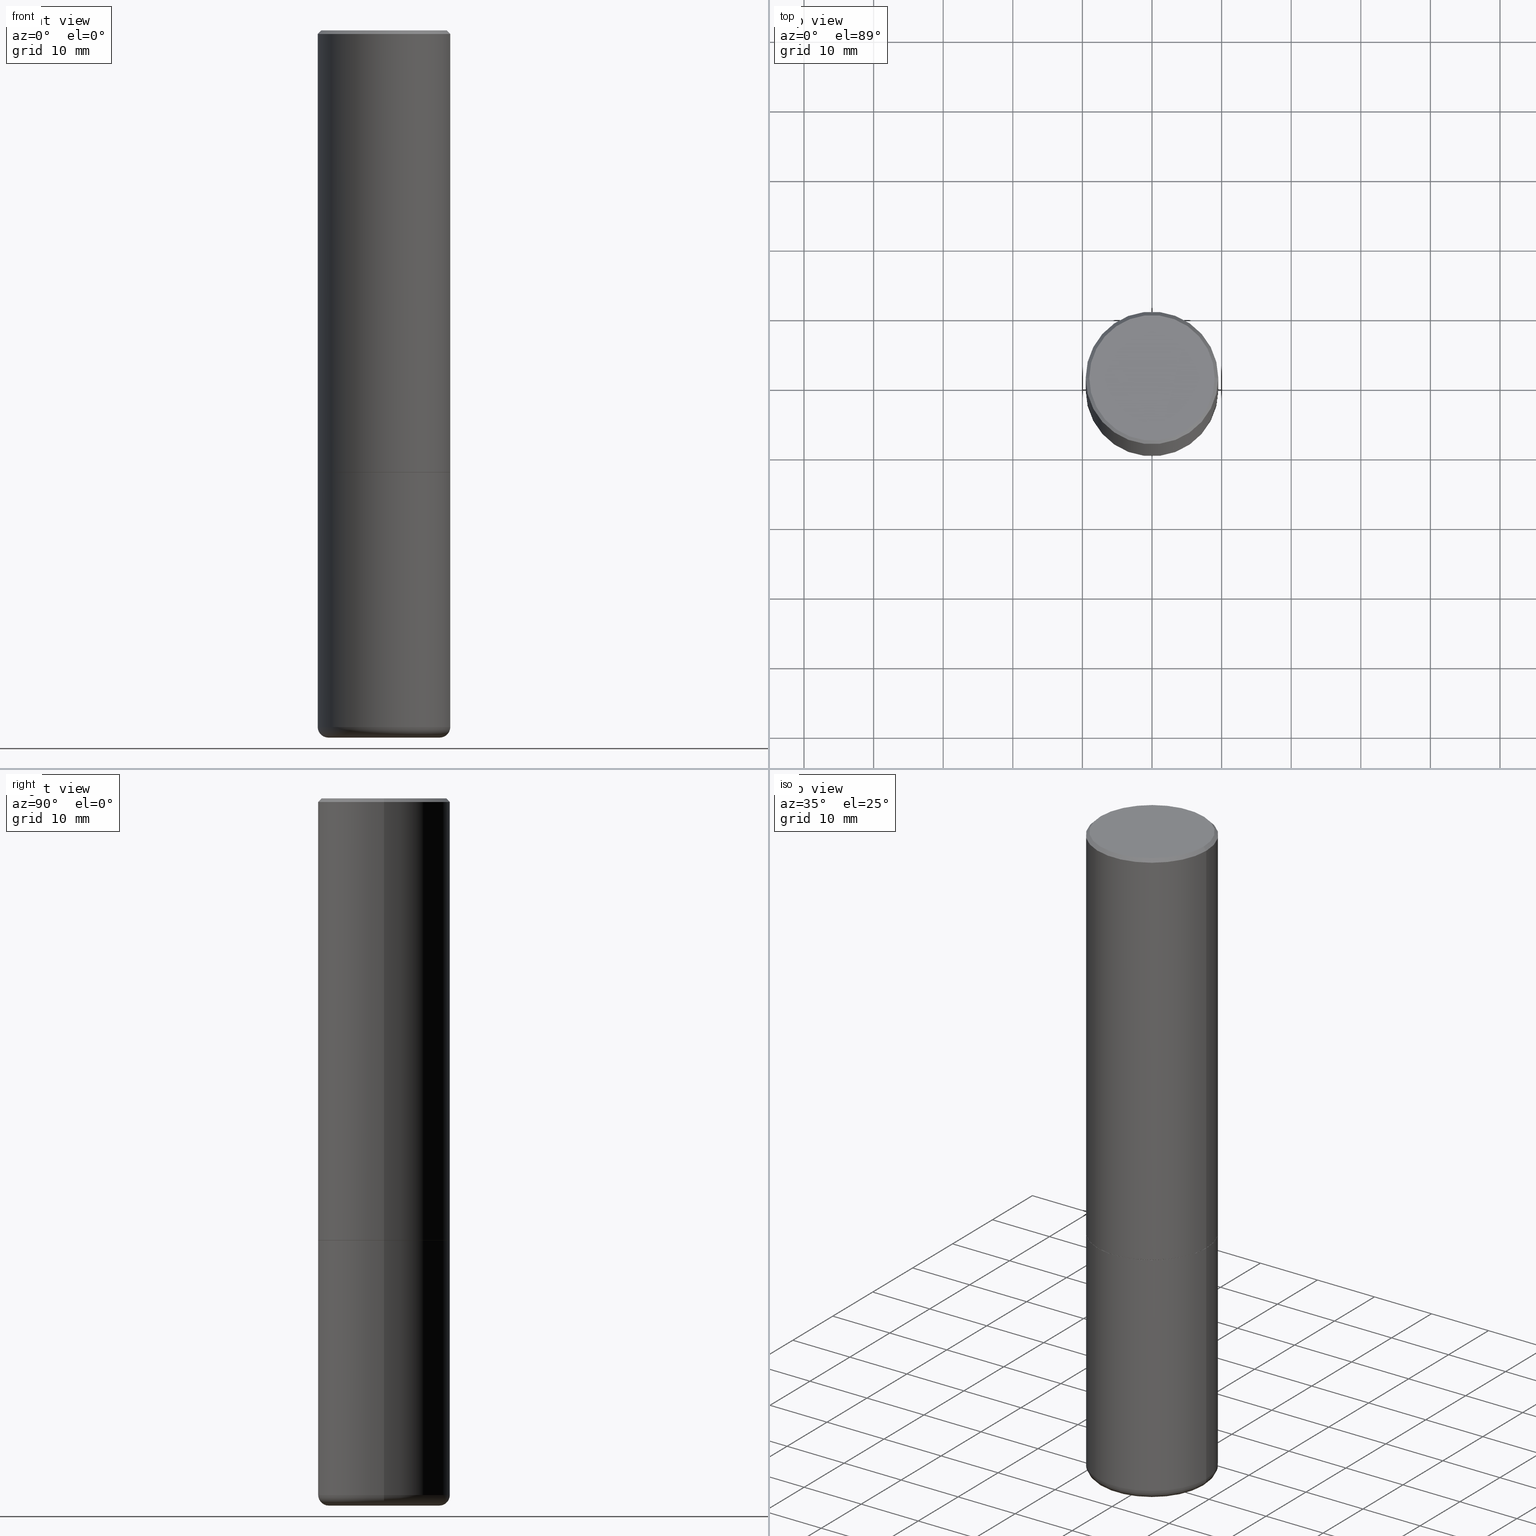
[diagram: canonical four-view strip — front | top / right | iso, engineering-drawing reading convention]
A machine part, canonical four-view strip (front | top / right | iso — engineering-drawing reading convention). The complete STEP part file that produces these views, byte-faithful:
ISO-10303-21;
HEADER;
FILE_DESCRIPTION (( 'STEP AP203' ),
    '1' );
FILE_NAME ('37104.STEP',
    '2024-03-01T20:12:25',
    ( '' ),
    ( '' ),
    'SwSTEP 2.0',
    'SolidWorks 2023',
    '' );
FILE_SCHEMA (( 'CONFIG_CONTROL_DESIGN' ));
ENDSEC;

DATA;
#1 = ORIENTED_EDGE ( 'NONE', *, *, #37, .T. ) ;
#2 = VERTEX_POINT ( 'NONE', #227 ) ;
#3 = CARTESIAN_POINT ( 'NONE',  ( 0.3749999999999999445, -2.618611004132349622E-15, 1.828566290923475642E-29 ) ) ;
#4 = ORIENTED_EDGE ( 'NONE', *, *, #258, .T. ) ;
#5 = EDGE_CURVE ( 'NONE', #339, #290, #391, .T. ) ;
#6 = EDGE_LOOP ( 'NONE', ( #402, #276, #304, #165 ) ) ;
#7 = CARTESIAN_POINT ( 'NONE',  ( 6.113672015462842613E-29, -8.728703347107864943E-15, -2.500000000000000000 ) ) ;
#8 = AXIS2_PLACEMENT_3D ( 'NONE', #158, #325, #77 ) ;
#9 = DIRECTION ( 'NONE',  ( -2.445468806185136597E-29, 3.491481338843145583E-15, 1.000000000000000000 ) ) ;
#10 = LINE ( 'NONE', #265, #232 ) ;
#11 = FACE_OUTER_BOUND ( 'NONE', #81, .T. ) ;
#12 = APPLICATION_PROTOCOL_DEFINITION ( 'international standard', 'config_control_design', 1994, #107 ) ;
#13 = DIRECTION ( 'NONE',  ( 2.438088387897960049E-29, -3.491481338843145188E-15, -1.000000000000000000 ) ) ;
#14 = APPROVAL_DATE_TIME ( #170, #373 ) ;
#15 = DIRECTION ( 'NONE',  ( 0.7071067811865460184, -7.319954787623251312E-15, -0.7071067811865490160 ) ) ;
#16 = ORIENTED_EDGE ( 'NONE', *, *, #264, .T. ) ;
#17 = ORIENTED_EDGE ( 'NONE', *, *, #242, .T. ) ;
#18 = DIRECTION ( 'NONE',  ( 1.000000000000000000, 0.000000000000000000, 0.000000000000000000 ) ) ;
#19 = EDGE_CURVE ( 'NONE', #316, #48, #30, .T. ) ;
#20 = ORIENTED_EDGE ( 'NONE', *, *, #311, .F. ) ;
#21 = DIRECTION ( 'NONE',  ( -2.445468806185136597E-29, 3.491481338843145583E-15, 1.000000000000000000 ) ) ;
#22 = LOCAL_TIME ( 15, 12, 25.00000000000000000, #385 ) ;
#23 = LINE ( 'NONE', #94, #377 ) ;
#24 = ORIENTED_EDGE ( 'NONE', *, *, #43, .F. ) ;
#25 = ADVANCED_FACE ( 'NONE', ( #286 ), #326, .F. ) ;
#26 = DIRECTION ( 'NONE',  ( 1.000000000000000000, -6.982962677686263555E-15, 4.883557194083111219E-29 ) ) ;
#27 = DIRECTION ( 'NONE',  ( 1.000000000000000000, -6.982962677686266711E-15, 4.876176775795935793E-29 ) ) ;
#28 = ORIENTED_EDGE ( 'NONE', *, *, #114, .T. ) ;
#29 = EDGE_CURVE ( 'NONE', #92, #67, #360, .T. ) ;
#30 = CIRCLE ( 'NONE', #259, 0.3739999999999999991 ) ;
#31 = AXIS2_PLACEMENT_3D ( 'NONE', #125, #250, #407 ) ;
#32 = DIRECTION ( 'NONE',  ( -2.445468806185136877E-29, 3.491481338843145188E-15, 1.000000000000000000 ) ) ;
#33 = CARTESIAN_POINT ( 'NONE',  ( -0.3749999999999999445, 2.664535259100375303E-15, -1.844600658845589318E-29 ) ) ;
#34 = CARTESIAN_POINT ( 'NONE',  ( -0.3750000000000001110, 2.548781377355487113E-15, -0.02000000000000008715 ) ) ;
#35 = CIRCLE ( 'NONE', #245, 0.3750000000000002776 ) ;
#36 = LINE ( 'NONE', #33, #210 ) ;
#37 = EDGE_CURVE ( 'NONE', #319, #355, #297, .T. ) ;
#38 = CARTESIAN_POINT ( 'NONE',  ( 0.3750000000000001110, -1.637504747917434403E-14, -3.939999999999999947 ) ) ;
#39 = APPROVAL ( #56, 'UNSPECIFIED' ) ;
#40 = DIRECTION ( 'NONE',  ( -2.445468806185136597E-29, 3.491481338843145583E-15, 1.000000000000000000 ) ) ;
#41 = DIRECTION ( 'NONE',  ( 1.000000000000000000, -6.982962677686267499E-15, 0.000000000000000000 ) ) ;
#42 = PRODUCT_DEFINITION_FORMATION_WITH_SPECIFIED_SOURCE ( 'ANY', '', #104, .NOT_KNOWN. ) ;
#43 = EDGE_CURVE ( 'NONE', #290, #355, #307, .T. ) ;
#44 = DIRECTION ( 'NONE',  ( 1.000000000000000000, -6.982962677686268288E-15, 0.000000000000000000 ) ) ;
#45 = DATE_AND_TIME ( #177, #334 ) ;
#46 = ORIENTED_EDGE ( 'NONE', *, *, #59, .T. ) ;
#47 = PERSON_AND_ORGANIZATION_ROLE ( 'design_owner' ) ;
#48 = VERTEX_POINT ( 'NONE', #331 ) ;
#49 = AXIS2_PLACEMENT_3D ( 'NONE', #228, #50, #376 ) ;
#50 = DIRECTION ( 'NONE',  ( -2.445468806185136597E-29, 3.491481338843145583E-15, 1.000000000000000000 ) ) ;
#51 = ORIENTED_EDGE ( 'NONE', *, *, #218, .F. ) ;
#52 = DIRECTION ( 'NONE',  ( 1.000000000000000000, -6.982962677686279332E-15, 0.000000000000000000 ) ) ;
#53 = CC_DESIGN_PERSON_AND_ORGANIZATION_ASSIGNMENT ( #401, #110, ( #328 ) ) ;
#54 = VERTEX_POINT ( 'NONE', #270 ) ;
#55 = EDGE_LOOP ( 'NONE', ( #207, #1, #405, #215 ) ) ;
#56 = APPROVAL_STATUS ( 'not_yet_approved' ) ;
#57 = CARTESIAN_POINT ( 'NONE',  ( 0.000000000000000000, 0.000000000000000000, 0.000000000000000000 ) ) ;
#58 = VECTOR ( 'NONE', #238, 39.37007874015748143 ) ;
#59 = EDGE_CURVE ( 'NONE', #67, #374, #178, .T. ) ;
#60 = AXIS2_PLACEMENT_3D ( 'NONE', #127, #40, #226 ) ;
#61 = ORIENTED_EDGE ( 'NONE', *, *, #63, .F. ) ;
#62 = VERTEX_POINT ( 'NONE', #303 ) ;
#63 = EDGE_CURVE ( 'NONE', #92, #366, #10, .T. ) ;
#64 = DIRECTION ( 'NONE',  ( -2.445468806185136597E-29, 3.491481338843145583E-15, 1.000000000000000000 ) ) ;
#65 = DIRECTION ( 'NONE',  ( -2.445468806185136597E-29, 3.491481338843145583E-15, 1.000000000000000000 ) ) ;
#66 = EDGE_CURVE ( 'NONE', #48, #181, #397, .T. ) ;
#67 = VERTEX_POINT ( 'NONE', #314 ) ;
#68 =( LENGTH_UNIT ( ) NAMED_UNIT ( * ) SI_UNIT ( $, .METRE. ) );
#69 = LINE ( 'NONE', #3, #143 ) ;
#70 = CONICAL_SURFACE ( 'NONE', #268, 0.3739999999999999991, 0.7853981633976873100 ) ;
#71 = ADVANCED_BREP_SHAPE_REPRESENTATION ( '37104', ( #408, #126, #260 ), #220 ) ;
#72 = ORGANIZATION ( 'UNSPECIFIED', 'UNSPECIFIED', '' ) ;
#73 = ORIENTED_EDGE ( 'NONE', *, *, #169, .T. ) ;
#74 = FACE_OUTER_BOUND ( 'NONE', #113, .T. ) ;
#75 = CYLINDRICAL_SURFACE ( 'NONE', #317, 0.3750000000000002220 ) ;
#76 = FACE_OUTER_BOUND ( 'NONE', #6, .T. ) ;
#77 = DIRECTION ( 'NONE',  ( 1.000000000000000000, -6.982962677686267499E-15, 0.000000000000000000 ) ) ;
#78 = AXIS2_PLACEMENT_3D ( 'NONE', #274, #272, #293 ) ;
#79 = APPROVAL_ROLE ( '' ) ;
#80 = CIRCLE ( 'NONE', #31, 0.06000000000000017819 ) ;
#81 = EDGE_LOOP ( 'NONE', ( #236, #263 ) ) ;
#82 = CARTESIAN_POINT ( 'NONE',  ( 0.000000000000000000, 0.000000000000000000, 0.000000000000000000 ) ) ;
#83 = ORIENTED_EDGE ( 'NONE', *, *, #305, .T. ) ;
#84 = CC_DESIGN_PERSON_AND_ORGANIZATION_ASSIGNMENT ( #295, #179, ( #42 ) ) ;
#85 = PERSON_AND_ORGANIZATION ( #267, #72 ) ;
#86 = AXIS2_PLACEMENT_3D ( 'NONE', #57, #65, #120 ) ;
#87 = CARTESIAN_POINT ( 'NONE',  ( 4.937077108964125641E-29, -2.090395200594849049E-14, -4.000000000000000000 ) ) ;
#88 = CIRCLE ( 'NONE', #8, 0.3150000000000000577 ) ;
#89 = DIRECTION ( 'NONE',  ( -2.445468806185136877E-29, 3.491481338843145188E-15, 1.000000000000000000 ) ) ;
#90 = CC_DESIGN_APPROVAL ( #373, ( #328 ) ) ;
#91 = CC_DESIGN_PERSON_AND_ORGANIZATION_ASSIGNMENT ( #209, #278, ( #42 ) ) ;
#92 = VERTEX_POINT ( 'NONE', #415 ) ;
#93 = FACE_OUTER_BOUND ( 'NONE', #200, .T. ) ;
#94 = CARTESIAN_POINT ( 'NONE',  ( 0.3750000000000002220, -2.618611004132351594E-15, 1.828566290923477043E-29 ) ) ;
#95 = EDGE_LOOP ( 'NONE', ( #20, #148, #229, #269 ) ) ;
#96 = EDGE_CURVE ( 'NONE', #67, #92, #399, .T. ) ;
#97 = AXIS2_PLACEMENT_3D ( 'NONE', #216, #152, #349 ) ;
#98 = APPROVAL_PERSON_ORGANIZATION ( #85, #283, #79 ) ;
#99 = CARTESIAN_POINT ( 'NONE',  ( 6.111226546656657010E-29, -8.725211865769021935E-15, -2.499000000000000110 ) ) ;
#100 =( CONVERSION_BASED_UNIT ( 'INCH', #132 ) LENGTH_UNIT ( ) NAMED_UNIT ( #284 ) );
#101 = ADVANCED_FACE ( 'NONE', ( #93 ), #381, .T. ) ;
#102 = LOCAL_TIME ( 15, 12, 25.00000000000000000, #398 ) ;
#103 = CARTESIAN_POINT ( 'NONE',  ( 0.000000000000000000, 0.000000000000000000, 0.000000000000000000 ) ) ;
#104 = PRODUCT ( '37104', '37104', '', ( #139 ) ) ;
#105 = CONICAL_SURFACE ( 'NONE', #244, 0.3739999999999999991, 0.7853981633976873100 ) ;
#106 = VECTOR ( 'NONE', #32, 39.37007874015748143 ) ;
#107 = APPLICATION_CONTEXT ( 'configuration controlled 3d designs of mechanical parts and assemblies' ) ;
#108 = COORDINATED_UNIVERSAL_TIME_OFFSET ( 5, 0, .BEHIND. ) ;
#109 = CC_DESIGN_DATE_AND_TIME_ASSIGNMENT ( #140, #146, ( #328 ) ) ;
#110 = PERSON_AND_ORGANIZATION_ROLE ( 'creator' ) ;
#111 = CIRCLE ( 'NONE', #298, 0.3750000000000001110 ) ;
#112 = SHAPE_DEFINITION_REPRESENTATION ( #118, #71 ) ;
#113 = EDGE_LOOP ( 'NONE', ( #214, #410 ) ) ;
#114 = EDGE_CURVE ( 'NONE', #316, #2, #180, .T. ) ;
#115 = CARTESIAN_POINT ( 'NONE',  ( 0.3739999999999999991, -1.134033138856252894E-14, -2.500000000000000000 ) ) ;
#116 = APPLICATION_CONTEXT ( 'configuration controlled 3d designs of mechanical parts and assemblies' ) ;
#117 = ADVANCED_FACE ( 'NONE', ( #76 ), #105, .T. ) ;
#118 = PRODUCT_DEFINITION_SHAPE ( 'NONE', 'NONE',  #328 ) ;
#119 = APPROVAL_ROLE ( '' ) ;
#120 = DIRECTION ( 'NONE',  ( 1.000000000000000000, -6.982962677686266711E-15, 4.876176775795935793E-29 ) ) ;
#121 = AXIS2_PLACEMENT_3D ( 'NONE', #416, #412, #352 ) ;
#122 = DIRECTION ( 'NONE',  ( 1.000000000000000000, -6.982962677686265922E-15, 4.878367520217864080E-29 ) ) ;
#123 = EDGE_CURVE ( 'NONE', #48, #316, #343, .T. ) ;
#124 = ORIENTED_EDGE ( 'NONE', *, *, #388, .T. ) ;
#125 = CARTESIAN_POINT ( 'NONE',  ( -0.3150000000000000577, -1.151822685739767881E-14, -3.939999999999999947 ) ) ;
#126 = MANIFOLD_SOLID_BREP ( 'Body-Move/Copy2[2]', #322 ) ;
#127 = CARTESIAN_POINT ( 'NONE',  ( 6.113672015462842613E-29, -8.728703347107864943E-15, -2.500000000000000000 ) ) ;
#128 = AXIS2_PLACEMENT_3D ( 'NONE', #144, #369, #333 ) ;
#129 = ORIENTED_EDGE ( 'NONE', *, *, #258, .F. ) ;
#130 = CC_DESIGN_SECURITY_CLASSIFICATION ( #386, ( #42 ) ) ;
#131 = ORIENTED_EDGE ( 'NONE', *, *, #96, .F. ) ;
#132 = LENGTH_MEASURE_WITH_UNIT ( LENGTH_MEASURE( 0.02539999999999999897 ), #68 );
#133 = DIRECTION ( 'NONE',  ( -2.445468806185136597E-29, 3.491481338843145583E-15, 1.000000000000000000 ) ) ;
#134 = DIRECTION ( 'NONE',  ( 1.000000000000000000, -6.982962677686265922E-15, 0.000000000000000000 ) ) ;
#135 = ORIENTED_EDGE ( 'NONE', *, *, #123, .F. ) ;
#136 = TOROIDAL_SURFACE ( 'NONE', #192, 0.3150000000000000577, 0.06000000000000017819 ) ;
#137 = DESIGN_CONTEXT ( 'detailed design', #116, 'design' ) ;
#138 = PRODUCT_RELATED_PRODUCT_CATEGORY ( 'detail', '', ( #104 ) ) ;
#139 = MECHANICAL_CONTEXT ( 'NONE', #107, 'mechanical' ) ;
#140 = DATE_AND_TIME ( #173, #280 ) ;
#141 = CARTESIAN_POINT ( 'NONE',  ( -0.3739999999999999991, -6.071273515365089465E-15, -2.500000000000000000 ) ) ;
#142 = AXIS2_PLACEMENT_3D ( 'NONE', #378, #212, #122 ) ;
#143 = VECTOR ( 'NONE', #389, 39.37007874015748143 ) ;
#144 = CARTESIAN_POINT ( 'NONE',  ( 6.113672015462842613E-29, -8.728703347107864943E-15, -2.500000000000000000 ) ) ;
#145 = ORIENTED_EDGE ( 'NONE', *, *, #384, .F. ) ;
#146 = DATE_TIME_ROLE ( 'creation_date' ) ;
#147 = ADVANCED_FACE ( 'NONE', ( #417 ), #70, .T. ) ;
#148 = ORIENTED_EDGE ( 'NONE', *, *, #5, .T. ) ;
#149 = CC_DESIGN_PERSON_AND_ORGANIZATION_ASSIGNMENT ( #247, #380, ( #386 ) ) ;
#150 = CARTESIAN_POINT ( 'NONE',  ( -0.3750000000000001110, -1.109190121594161832E-14, -3.939999999999999947 ) ) ;
#151 = ORIENTED_EDGE ( 'NONE', *, *, #221, .F. ) ;
#152 = DIRECTION ( 'NONE',  ( 2.445468806185136597E-29, -3.491481338843145583E-15, -1.000000000000000000 ) ) ;
#153 = DIRECTION ( 'NONE',  ( 1.000000000000000000, -6.982962677686269077E-15, 0.000000000000000000 ) ) ;
#154 = UNCERTAINTY_MEASURE_WITH_UNIT (LENGTH_MEASURE( 1.000000000000000082E-05 ), #100, 'distance_accuracy_value', 'NONE');
#155 = LINE ( 'NONE', #184, #106 ) ;
#156 = APPROVAL_PERSON_ORGANIZATION ( #340, #39, #119 ) ;
#157 = CARTESIAN_POINT ( 'NONE',  ( 0.3739999999999999991, -1.134033138856252894E-14, -2.500000000000000000 ) ) ;
#158 = CARTESIAN_POINT ( 'NONE',  ( 9.781875224740547508E-29, -1.396592535537258391E-14, -4.000000000000000888 ) ) ;
#159 = DIRECTION ( 'NONE',  ( 1.000000000000000000, -6.982962677686268288E-15, 0.000000000000000000 ) ) ;
#160 = ORIENTED_EDGE ( 'NONE', *, *, #311, .T. ) ;
#161 = AXIS2_PLACEMENT_3D ( 'NONE', #7, #266, #252 ) ;
#162 = AXIS2_PLACEMENT_3D ( 'NONE', #409, #345, #153 ) ;
#163 = DIRECTION ( 'NONE',  ( -2.445468806185136597E-29, 3.491481338843145583E-15, 1.000000000000000000 ) ) ;
#164 = ORIENTED_EDGE ( 'NONE', *, *, #63, .T. ) ;
#165 = ORIENTED_EDGE ( 'NONE', *, *, #114, .F. ) ;
#166 = AXIS2_PLACEMENT_3D ( 'NONE', #103, #356, #321 ) ;
#167 = DIRECTION ( 'NONE',  ( 2.438088387897960049E-29, -3.491481338843145188E-15, -1.000000000000000000 ) ) ;
#168 = APPROVAL_DATE_TIME ( #45, #283 ) ;
#169 = EDGE_CURVE ( 'NONE', #319, #62, #36, .T. ) ;
#170 = DATE_AND_TIME ( #375, #102 ) ;
#171 = ORIENTED_EDGE ( 'NONE', *, *, #264, .F. ) ;
#172 = VECTOR ( 'NONE', #400, 39.37007874015748143 ) ;
#173 = CALENDAR_DATE ( 2024, 1, 3 ) ;
#174 = AXIS2_PLACEMENT_3D ( 'NONE', #183, #21, #282 ) ;
#175 = DIRECTION ( 'NONE',  ( -6.982962677686266711E-15, -1.000000000000000000, 3.491481338843145583E-15 ) ) ;
#176 = ORIENTED_EDGE ( 'NONE', *, *, #29, .F. ) ;
#177 = CALENDAR_DATE ( 2024, 1, 3 ) ;
#178 = LINE ( 'NONE', #365, #182 ) ;
#179 = PERSON_AND_ORGANIZATION_ROLE ( 'creator' ) ;
#180 = LINE ( 'NONE', #157, #58 ) ;
#181 = VERTEX_POINT ( 'NONE', #393 ) ;
#182 = VECTOR ( 'NONE', #15, 39.37007874015748143 ) ;
#183 = CARTESIAN_POINT ( 'NONE',  ( 6.113672015462842613E-29, -8.728703347107864943E-15, -2.500000000000000000 ) ) ;
#184 = CARTESIAN_POINT ( 'NONE',  ( -0.3750000000000002220, 2.664535259100377275E-15, -1.844600658845590719E-29 ) ) ;
#185 = ADVANCED_FACE ( 'NONE', ( #11 ), #275, .F. ) ;
#186 = FACE_OUTER_BOUND ( 'NONE', #395, .T. ) ;
#187 = AXIS2_PLACEMENT_3D ( 'NONE', #251, #357, #134 ) ;
#188 = FACE_OUTER_BOUND ( 'NONE', #256, .T. ) ;
#189 = CARTESIAN_POINT ( 'NONE',  ( 6.113672015462842613E-29, -8.728703347107864943E-15, -2.500000000000000000 ) ) ;
#190 = FACE_OUTER_BOUND ( 'NONE', #55, .T. ) ;
#191 = AXIS2_PLACEMENT_3D ( 'NONE', #337, #167, #362 ) ;
#192 = AXIS2_PLACEMENT_3D ( 'NONE', #315, #64, #312 ) ;
#193 = CYLINDRICAL_SURFACE ( 'NONE', #166, 0.3749999999999999445 ) ;
#194 = ORIENTED_EDGE ( 'NONE', *, *, #384, .T. ) ;
#195 = FACE_OUTER_BOUND ( 'NONE', #347, .T. ) ;
#196 = DIRECTION ( 'NONE',  ( -1.000000000000000000, 6.982962677686265922E-15, 0.000000000000000000 ) ) ;
#197 = CIRCLE ( 'NONE', #205, 0.3750000000000002776 ) ;
#198 = EDGE_LOOP ( 'NONE', ( #413, #160, #202, #24 ) ) ;
#200 = EDGE_LOOP ( 'NONE', ( #131, #46, #330, #61 ) ) ;
#199 = ADVANCED_FACE ( 'NONE', ( #195 ), #75, .T. ) ;
#201 = APPROVAL_STATUS ( 'not_yet_approved' ) ;
#202 = ORIENTED_EDGE ( 'NONE', *, *, #332, .F. ) ;
#203 = AXIS2_PLACEMENT_3D ( 'NONE', #394, #363, #41 ) ;
#204 = APPROVAL_STATUS ( 'not_yet_approved' ) ;
#205 = AXIS2_PLACEMENT_3D ( 'NONE', #99, #133, #359 ) ;
#206 = CALENDAR_DATE ( 2024, 1, 3 ) ;
#207 = ORIENTED_EDGE ( 'NONE', *, *, #169, .F. ) ;
#208 = PLANE ( 'NONE',  #121 ) ;
#209 = PERSON_AND_ORGANIZATION ( #267, #72 ) ;
#210 = VECTOR ( 'NONE', #287, 39.37007874015748143 ) ;
#211 = APPROVAL_PERSON_ORGANIZATION ( #233, #373, #368 ) ;
#212 = DIRECTION ( 'NONE',  ( -2.445468806185136597E-29, 3.491481338843145583E-15, 1.000000000000000000 ) ) ;
#213 = DIRECTION ( 'NONE',  ( -2.445468806185136597E-29, 3.491481338843145583E-15, 1.000000000000000000 ) ) ;
#214 = ORIENTED_EDGE ( 'NONE', *, *, #364, .F. ) ;
#215 = ORIENTED_EDGE ( 'NONE', *, *, #305, .F. ) ;
#216 = CARTESIAN_POINT ( 'NONE',  ( 4.890937612370294178E-31, -6.982962677686321191E-17, -0.02000000000000008715 ) ) ;
#217 = CARTESIAN_POINT ( 'NONE',  ( 6.111226546656657010E-29, -8.725211865769021935E-15, -2.499000000000000110 ) ) ;
#218 = EDGE_CURVE ( 'NONE', #374, #366, #323, .T. ) ;
#219 = DIRECTION ( 'NONE',  ( 1.000000000000000000, -6.982962677686265922E-15, 0.000000000000000000 ) ) ;
#220 =( GEOMETRIC_REPRESENTATION_CONTEXT ( 3 ) GLOBAL_UNCERTAINTY_ASSIGNED_CONTEXT ( ( #154 ) ) GLOBAL_UNIT_ASSIGNED_CONTEXT ( ( #100, #262, #320 ) ) REPRESENTATION_CONTEXT ( 'NONE', 'WORKASPACE' ) );
#221 = EDGE_CURVE ( 'NONE', #355, #54, #69, .T. ) ;
#222 = CARTESIAN_POINT ( 'NONE',  ( 4.890937612370294178E-31, -6.982962677686321191E-17, -0.02000000000000008715 ) ) ;
#223 = DIRECTION ( 'NONE',  ( -2.445468806185136597E-29, 3.491481338843145583E-15, 1.000000000000000000 ) ) ;
#224 = ADVANCED_FACE ( 'NONE', ( #74 ), #392, .T. ) ;
#225 = AXIS2_PLACEMENT_3D ( 'NONE', #354, #285, #288 ) ;
#226 = DIRECTION ( 'NONE',  ( 1.000000000000000000, -6.982962677686264344E-15, 0.000000000000000000 ) ) ;
#227 = CARTESIAN_POINT ( 'NONE',  ( 0.3750000000000002776, -1.134382286990137353E-14, -2.499000000000000110 ) ) ;
#228 = CARTESIAN_POINT ( 'NONE',  ( 9.635147096369438236E-29, -1.375643647504199401E-14, -3.939999999999999947 ) ) ;
#229 = ORIENTED_EDGE ( 'NONE', *, *, #43, .T. ) ;
#230 = EDGE_CURVE ( 'NONE', #181, #366, #155, .T. ) ;
#231 = APPLICATION_PROTOCOL_DEFINITION ( 'international standard', 'config_control_design', 1994, #116 ) ;
#232 = VECTOR ( 'NONE', #296, 39.37007874015748143 ) ;
#233 = PERSON_AND_ORGANIZATION ( #267, #72 ) ;
#234 = CC_DESIGN_PERSON_AND_ORGANIZATION_ASSIGNMENT ( #396, #47, ( #104 ) ) ;
#235 = DIRECTION ( 'NONE',  ( -2.445468806185136597E-29, 3.491481338843145583E-15, 1.000000000000000000 ) ) ;
#236 = ORIENTED_EDGE ( 'NONE', *, *, #29, .T. ) ;
#237 = ORIENTED_EDGE ( 'NONE', *, *, #332, .T. ) ;
#238 = DIRECTION ( 'NONE',  ( 0.7071067811867165487, -2.468850131084027659E-15, 0.7071067811863784858 ) ) ;
#239 = DIRECTION ( 'NONE',  ( -1.000000000000000000, 6.982962677686265922E-15, -4.876176775795935793E-29 ) ) ;
#240 = SECURITY_CLASSIFICATION_LEVEL ( 'unclassified' ) ;
#241 = ADVANCED_FACE ( 'NONE', ( #248 ), #136, .T. ) ;
#242 = EDGE_CURVE ( 'NONE', #2, #374, #23, .T. ) ;
#243 = COORDINATED_UNIVERSAL_TIME_OFFSET ( 5, 0, .BEHIND. ) ;
#244 = AXIS2_PLACEMENT_3D ( 'NONE', #367, #235, #44 ) ;
#245 = AXIS2_PLACEMENT_3D ( 'NONE', #217, #281, #350 ) ;
#246 = CYLINDRICAL_SURFACE ( 'NONE', #86, 0.3749999999999999445 ) ;
#247 = PERSON_AND_ORGANIZATION ( #267, #72 ) ;
#248 = FACE_OUTER_BOUND ( 'NONE', #95, .T. ) ;
#249 = CARTESIAN_POINT ( 'NONE',  ( 6.113672015462842613E-29, -8.728703347107864943E-15, -2.500000000000000000 ) ) ;
#250 = DIRECTION ( 'NONE',  ( 7.105427357601001859E-15, 1.000000000000000000, -3.491481338843145583E-15 ) ) ;
#251 = CARTESIAN_POINT ( 'NONE',  ( 4.890937612370294178E-31, -6.982962677686321191E-17, -0.02000000000000008715 ) ) ;
#252 = DIRECTION ( 'NONE',  ( 1.000000000000000000, -6.982962677686268288E-15, 0.000000000000000000 ) ) ;
#253 = DIRECTION ( 'NONE',  ( 2.445468806185136597E-29, -3.491481338843145583E-15, -1.000000000000000000 ) ) ;
#254 = CLOSED_SHELL ( 'NONE', ( #301, #294, #273, #348, #241, #224 ) ) ;
#255 = LOCAL_TIME ( 15, 12, 25.00000000000000000, #243 ) ;
#256 = EDGE_LOOP ( 'NONE', ( #124, #379, #51, #335 ) ) ;
#257 = CYLINDRICAL_SURFACE ( 'NONE', #225, 0.3750000000000002220 ) ;
#258 = EDGE_CURVE ( 'NONE', #366, #374, #111, .T. ) ;
#259 = AXIS2_PLACEMENT_3D ( 'NONE', #189, #163, #159 ) ;
#260 = AXIS2_PLACEMENT_3D ( 'NONE', #82, #300, #18 ) ;
#261 = CIRCLE ( 'NONE', #162, 0.3749999999999999445 ) ;
#262 =( NAMED_UNIT ( * ) PLANE_ANGLE_UNIT ( ) SI_UNIT ( $, .RADIAN. ) );
#263 = ORIENTED_EDGE ( 'NONE', *, *, #96, .T. ) ;
#264 = EDGE_CURVE ( 'NONE', #181, #2, #35, .T. ) ;
#265 = CARTESIAN_POINT ( 'NONE',  ( -0.3750000000000001110, 2.548781377355487113E-15, -0.02000000000000008715 ) ) ;
#266 = DIRECTION ( 'NONE',  ( -2.445468806185136597E-29, 3.491481338843145583E-15, 1.000000000000000000 ) ) ;
#267 = PERSON ( 'UNSPECIFIED', 'UNSPECIFIED', 'UNSPECIFIED', ('UNSPECIFIED'), ('UNSPECIFIED'), ('UNSPECIFIED') ) ;
#268 = AXIS2_PLACEMENT_3D ( 'NONE', #249, #223, #324 ) ;
#269 = ORIENTED_EDGE ( 'NONE', *, *, #37, .F. ) ;
#270 = CARTESIAN_POINT ( 'NONE',  ( 0.3750000000000000555, -1.134731435124021338E-14, -2.500000000000000000 ) ) ;
#271 = EDGE_LOOP ( 'NONE', ( #353, #299, #28, #171 ) ) ;
#272 = DIRECTION ( 'NONE',  ( -2.445468806185136597E-29, 3.491481338843145583E-15, 1.000000000000000000 ) ) ;
#273 = ADVANCED_FACE ( 'NONE', ( #186 ), #208, .F. ) ;
#274 = CARTESIAN_POINT ( 'NONE',  ( -4.801716505942010742E-45, 6.855578583750057175E-31, 1.963515745446189127E-16 ) ) ;
#275 = PLANE ( 'NONE',  #191 ) ;
#276 = ORIENTED_EDGE ( 'NONE', *, *, #66, .T. ) ;
#277 = TOROIDAL_SURFACE ( 'NONE', #361, 0.3150000000000000577, 0.06000000000000017819 ) ;
#278 = PERSON_AND_ORGANIZATION_ROLE ( 'design_supplier' ) ;
#279 = DIRECTION ( 'NONE',  ( -2.445468806185136597E-29, 3.491481338843145583E-15, 1.000000000000000000 ) ) ;
#280 = LOCAL_TIME ( 15, 12, 25.00000000000000000, #108 ) ;
#281 = DIRECTION ( 'NONE',  ( -2.445468806185136597E-29, 3.491481338843145583E-15, 1.000000000000000000 ) ) ;
#282 = DIRECTION ( 'NONE',  ( 1.000000000000000000, -6.982962677686264344E-15, 0.000000000000000000 ) ) ;
#283 = APPROVAL ( #204, 'UNSPECIFIED' ) ;
#284 = DIMENSIONAL_EXPONENTS ( 1.000000000000000000, 0.000000000000000000, 0.000000000000000000, 0.000000000000000000, 0.000000000000000000, 0.000000000000000000, 0.000000000000000000 ) ;
#285 = DIRECTION ( 'NONE',  ( -2.445468806185136597E-29, 3.491481338843145583E-15, 1.000000000000000000 ) ) ;
#286 = FACE_OUTER_BOUND ( 'NONE', #302, .T. ) ;
#287 = DIRECTION ( 'NONE',  ( -2.445468806185136877E-29, 3.491481338843145188E-15, 1.000000000000000000 ) ) ;
#288 = DIRECTION ( 'NONE',  ( 1.000000000000000000, -6.982962677686266711E-15, 4.876176775795935793E-29 ) ) ;
#289 = CARTESIAN_POINT ( 'NONE',  ( -0.3150000000000000577, -1.140980847683494509E-14, -4.000000000000000888 ) ) ;
#290 = VERTEX_POINT ( 'NONE', #318 ) ;
#291 = AXIS2_PLACEMENT_3D ( 'NONE', #87, #13, #239 ) ;
#292 = EDGE_LOOP ( 'NONE', ( #237, #73, #145, #151 ) ) ;
#293 = DIRECTION ( 'NONE',  ( 1.000000000000000000, -6.982962677686265922E-15, 4.878367520217864080E-29 ) ) ;
#294 = ADVANCED_FACE ( 'NONE', ( #309 ), #277, .T. ) ;
#295 = PERSON_AND_ORGANIZATION ( #267, #72 ) ;
#296 = DIRECTION ( 'NONE',  ( -0.7071067811865460184, 2.468850131082241283E-15, -0.7071067811865490160 ) ) ;
#297 = CIRCLE ( 'NONE', #49, 0.3749999999999999445 ) ;
#298 = AXIS2_PLACEMENT_3D ( 'NONE', #383, #279, #219 ) ;
#299 = ORIENTED_EDGE ( 'NONE', *, *, #123, .T. ) ;
#300 = DIRECTION ( 'NONE',  ( 0.000000000000000000, 0.000000000000000000, 1.000000000000000000 ) ) ;
#301 = ADVANCED_FACE ( 'NONE', ( #418 ), #246, .T. ) ;
#302 = EDGE_LOOP ( 'NONE', ( #310, #135 ) ) ;
#303 = CARTESIAN_POINT ( 'NONE',  ( -0.3750000000000000555, -8.578034651974553781E-15, -2.500000000000000000 ) ) ;
#304 = ORIENTED_EDGE ( 'NONE', *, *, #388, .F. ) ;
#305 = EDGE_CURVE ( 'NONE', #62, #54, #344, .T. ) ;
#306 = ORIENTED_EDGE ( 'NONE', *, *, #230, .F. ) ;
#307 = CIRCLE ( 'NONE', #403, 0.06000000000000017819 ) ;
#308 = CC_DESIGN_APPROVAL ( #39, ( #386 ) ) ;
#309 = FACE_OUTER_BOUND ( 'NONE', #198, .T. ) ;
#310 = ORIENTED_EDGE ( 'NONE', *, *, #19, .F. ) ;
#311 = EDGE_CURVE ( 'NONE', #339, #319, #80, .T. ) ;
#312 = DIRECTION ( 'NONE',  ( 1.000000000000000000, -6.982962677686263555E-15, 4.883557194083111219E-29 ) ) ;
#313 = APPROVAL_DATE_TIME ( #346, #39 ) ;
#314 = CARTESIAN_POINT ( 'NONE',  ( 0.3549999999999999267, -2.538996582575040259E-15, 1.963515745446364895E-16 ) ) ;
#315 = CARTESIAN_POINT ( 'NONE',  ( 9.635147096369438236E-29, -1.375643647504199401E-14, -3.939999999999999947 ) ) ;
#316 = VERTEX_POINT ( 'NONE', #115 ) ;
#317 = AXIS2_PLACEMENT_3D ( 'NONE', #329, #9, #27 ) ;
#318 = CARTESIAN_POINT ( 'NONE',  ( 0.3150000000000000577, -1.616555859884375729E-14, -4.000000000000000888 ) ) ;
#319 = VERTEX_POINT ( 'NONE', #150 ) ;
#320 =( NAMED_UNIT ( * ) SI_UNIT ( $, .STERADIAN. ) SOLID_ANGLE_UNIT ( ) );
#321 = DIRECTION ( 'NONE',  ( 1.000000000000000000, -6.982962677686266711E-15, 4.876176775795935793E-29 ) ) ;
#322 = CLOSED_SHELL ( 'NONE', ( #117, #371, #101, #338, #199, #147, #25, #185 ) ) ;
#323 = CIRCLE ( 'NONE', #187, 0.3750000000000001110 ) ;
#324 = DIRECTION ( 'NONE',  ( 1.000000000000000000, -6.982962677686268288E-15, 0.000000000000000000 ) ) ;
#325 = DIRECTION ( 'NONE',  ( -2.445468806185136597E-29, 3.491481338843145583E-15, 1.000000000000000000 ) ) ;
#326 = PLANE ( 'NONE',  #128 ) ;
#327 = CC_DESIGN_APPROVAL ( #283, ( #42 ) ) ;
#328 = PRODUCT_DEFINITION ( 'UNKNOWN', '', #42, #137 ) ;
#329 = CARTESIAN_POINT ( 'NONE',  ( 0.000000000000000000, 0.000000000000000000, 0.000000000000000000 ) ) ;
#330 = ORIENTED_EDGE ( 'NONE', *, *, #218, .T. ) ;
#331 = CARTESIAN_POINT ( 'NONE',  ( -0.3739999999999999991, -6.065975061016866274E-15, -2.500000000000000000 ) ) ;
#332 = EDGE_CURVE ( 'NONE', #355, #319, #261, .T. ) ;
#333 = DIRECTION ( 'NONE',  ( 1.000000000000000000, -6.982962677686265922E-15, 4.876176775795935793E-29 ) ) ;
#334 = LOCAL_TIME ( 15, 12, 25.00000000000000000, #336 ) ;
#335 = ORIENTED_EDGE ( 'NONE', *, *, #242, .F. ) ;
#336 = COORDINATED_UNIVERSAL_TIME_OFFSET ( 5, 0, .BEHIND. ) ;
#337 = CARTESIAN_POINT ( 'NONE',  ( 2.478951750578623815E-15, 0.3549999999999999267, -1.141300088017006827E-15 ) ) ;
#338 = ADVANCED_FACE ( 'NONE', ( #390 ), #414, .T. ) ;
#339 = VERTEX_POINT ( 'NONE', #289 ) ;
#340 = PERSON_AND_ORGANIZATION ( #267, #72 ) ;
#341 = CARTESIAN_POINT ( 'NONE',  ( 9.635147096369438236E-29, -1.375643647504199401E-14, -3.939999999999999947 ) ) ;
#342 = ORIENTED_EDGE ( 'NONE', *, *, #59, .F. ) ;
#343 = CIRCLE ( 'NONE', #161, 0.3739999999999999991 ) ;
#344 = CIRCLE ( 'NONE', #174, 0.3750000000000000555 ) ;
#345 = DIRECTION ( 'NONE',  ( -2.445468806185136597E-29, 3.491481338843145583E-15, 1.000000000000000000 ) ) ;
#346 = DATE_AND_TIME ( #382, #255 ) ;
#347 = EDGE_LOOP ( 'NONE', ( #306, #16, #17, #129 ) ) ;
#348 = ADVANCED_FACE ( 'NONE', ( #190 ), #193, .T. ) ;
#349 = DIRECTION ( 'NONE',  ( -1.000000000000000000, 6.982962677686265922E-15, 0.000000000000000000 ) ) ;
#350 = DIRECTION ( 'NONE',  ( 1.000000000000000000, -6.982962677686265922E-15, 0.000000000000000000 ) ) ;
#351 = AXIS2_PLACEMENT_3D ( 'NONE', #222, #253, #196 ) ;
#352 = DIRECTION ( 'NONE',  ( -1.000000000000000000, 6.982962677686265922E-15, -4.876176775795935793E-29 ) ) ;
#353 = ORIENTED_EDGE ( 'NONE', *, *, #66, .F. ) ;
#354 = CARTESIAN_POINT ( 'NONE',  ( 0.000000000000000000, 0.000000000000000000, 0.000000000000000000 ) ) ;
#355 = VERTEX_POINT ( 'NONE', #38 ) ;
#356 = DIRECTION ( 'NONE',  ( -2.445468806185136597E-29, 3.491481338843145583E-15, 1.000000000000000000 ) ) ;
#357 = DIRECTION ( 'NONE',  ( -2.445468806185136597E-29, 3.491481338843145583E-15, 1.000000000000000000 ) ) ;
#358 = CC_DESIGN_DATE_AND_TIME_ASSIGNMENT ( #411, #406, ( #386 ) ) ;
#359 = DIRECTION ( 'NONE',  ( 1.000000000000000000, -6.982962677686265922E-15, 0.000000000000000000 ) ) ;
#360 = CIRCLE ( 'NONE', #78, 0.3549999999999999267 ) ;
#361 = AXIS2_PLACEMENT_3D ( 'NONE', #341, #213, #26 ) ;
#362 = DIRECTION ( 'NONE',  ( -1.000000000000000000, 6.982962677686265922E-15, -4.876176775795935793E-29 ) ) ;
#363 = DIRECTION ( 'NONE',  ( -2.445468806185136597E-29, 3.491481338843145583E-15, 1.000000000000000000 ) ) ;
#364 = EDGE_CURVE ( 'NONE', #290, #339, #88, .T. ) ;
#365 = CARTESIAN_POINT ( 'NONE',  ( 0.3750000000000001110, -2.642516375941188423E-15, -0.02000000000000008715 ) ) ;
#366 = VERTEX_POINT ( 'NONE', #34 ) ;
#367 = CARTESIAN_POINT ( 'NONE',  ( 6.113672015462842613E-29, -8.728703347107864943E-15, -2.500000000000000000 ) ) ;
#368 = APPROVAL_ROLE ( '' ) ;
#369 = DIRECTION ( 'NONE',  ( -2.438088387897960049E-29, 3.491481338843145188E-15, 1.000000000000000000 ) ) ;
#370 = CARTESIAN_POINT ( 'NONE',  ( 0.3150000000000000577, -1.595606971851316740E-14, -3.939999999999999947 ) ) ;
#371 = ADVANCED_FACE ( 'NONE', ( #188 ), #257, .T. ) ;
#372 = EDGE_LOOP ( 'NONE', ( #342, #176, #164, #4 ) ) ;
#374 = VERTEX_POINT ( 'NONE', #387 ) ;
#373 = APPROVAL ( #201, 'UNSPECIFIED' ) ;
#375 = CALENDAR_DATE ( 2024, 1, 3 ) ;
#376 = DIRECTION ( 'NONE',  ( 1.000000000000000000, -6.982962677686269077E-15, 0.000000000000000000 ) ) ;
#377 = VECTOR ( 'NONE', #89, 39.37007874015748143 ) ;
#378 = CARTESIAN_POINT ( 'NONE',  ( -4.801716505942010742E-45, 6.855578583750057175E-31, 1.963515745446189127E-16 ) ) ;
#379 = ORIENTED_EDGE ( 'NONE', *, *, #230, .T. ) ;
#380 = PERSON_AND_ORGANIZATION_ROLE ( 'classification_officer' ) ;
#381 = CONICAL_SURFACE ( 'NONE', #97, 0.3750000000000001110, 0.7853981633974461696 ) ;
#382 = CALENDAR_DATE ( 2024, 1, 3 ) ;
#383 = CARTESIAN_POINT ( 'NONE',  ( 4.890937612370294178E-31, -6.982962677686321191E-17, -0.02000000000000008715 ) ) ;
#384 = EDGE_CURVE ( 'NONE', #54, #62, #404, .T. ) ;
#385 = COORDINATED_UNIVERSAL_TIME_OFFSET ( 5, 0, .BEHIND. ) ;
#386 = SECURITY_CLASSIFICATION ( '', '', #240 ) ;
#387 = CARTESIAN_POINT ( 'NONE',  ( 0.3750000000000001110, -2.642516375941188423E-15, -0.02000000000000008715 ) ) ;
#388 = EDGE_CURVE ( 'NONE', #2, #181, #197, .T. ) ;
#389 = DIRECTION ( 'NONE',  ( -2.445468806185136877E-29, 3.491481338843145188E-15, 1.000000000000000000 ) ) ;
#390 = FACE_OUTER_BOUND ( 'NONE', #372, .T. ) ;
#391 = CIRCLE ( 'NONE', #203, 0.3150000000000000577 ) ;
#392 = PLANE ( 'NONE',  #291 ) ;
#393 = CARTESIAN_POINT ( 'NONE',  ( -0.3750000000000002776, -1.732985487172563764E-15, -2.499000000000000110 ) ) ;
#394 = CARTESIAN_POINT ( 'NONE',  ( 9.781875224740547508E-29, -1.396592535537258391E-14, -4.000000000000000888 ) ) ;
#395 = EDGE_LOOP ( 'NONE', ( #194, #83 ) ) ;
#396 = PERSON_AND_ORGANIZATION ( #267, #72 ) ;
#397 = LINE ( 'NONE', #141, #172 ) ;
#398 = COORDINATED_UNIVERSAL_TIME_OFFSET ( 5, 0, .BEHIND. ) ;
#399 = CIRCLE ( 'NONE', #142, 0.3549999999999999267 ) ;
#400 = DIRECTION ( 'NONE',  ( -0.7071067811867165487, 7.493145998870964739E-15, 0.7071067811863784858 ) ) ;
#401 = PERSON_AND_ORGANIZATION ( #267, #72 ) ;
#402 = ORIENTED_EDGE ( 'NONE', *, *, #19, .T. ) ;
#403 = AXIS2_PLACEMENT_3D ( 'NONE', #370, #175, #52 ) ;
#404 = CIRCLE ( 'NONE', #60, 0.3750000000000000555 ) ;
#405 = ORIENTED_EDGE ( 'NONE', *, *, #221, .T. ) ;
#406 = DATE_TIME_ROLE ( 'classification_date' ) ;
#407 = DIRECTION ( 'NONE',  ( -1.000000000000000000, 7.105427357601001859E-15, 0.000000000000000000 ) ) ;
#408 = MANIFOLD_SOLID_BREP ( 'Body-Move/Copy2[1]', #254 ) ;
#409 = CARTESIAN_POINT ( 'NONE',  ( 9.635147096369438236E-29, -1.375643647504199401E-14, -3.939999999999999947 ) ) ;
#410 = ORIENTED_EDGE ( 'NONE', *, *, #5, .F. ) ;
#411 = DATE_AND_TIME ( #206, #22 ) ;
#412 = DIRECTION ( 'NONE',  ( 2.438088387897960049E-29, -3.491481338843145188E-15, -1.000000000000000000 ) ) ;
#413 = ORIENTED_EDGE ( 'NONE', *, *, #364, .T. ) ;
#414 = CONICAL_SURFACE ( 'NONE', #351, 0.3750000000000001110, 0.7853981633974461696 ) ;
#415 = CARTESIAN_POINT ( 'NONE',  ( -0.3549999999999999267, 2.513866563967055464E-15, 1.963515745446014591E-16 ) ) ;
#416 = CARTESIAN_POINT ( 'NONE',  ( 6.113672015462842613E-29, -8.728703347107864943E-15, -2.500000000000000000 ) ) ;
#417 = FACE_OUTER_BOUND ( 'NONE', #271, .T. ) ;
#418 = FACE_OUTER_BOUND ( 'NONE', #292, .T. ) ;
ENDSEC;
END-ISO-10303-21;
